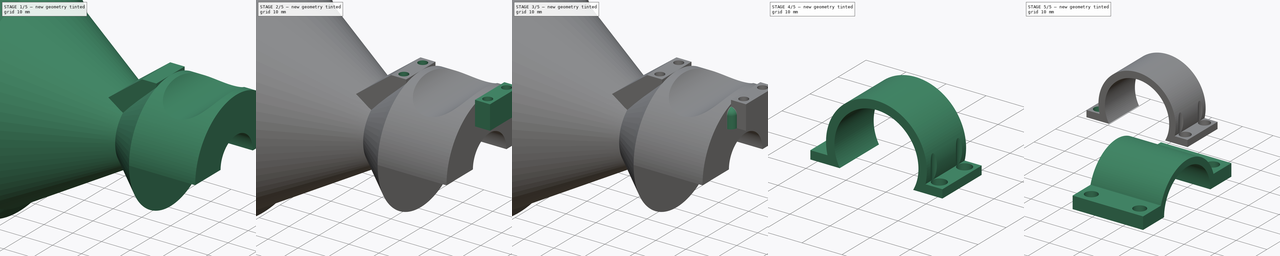
[diagram: build sequence overview — one tinted view per stage of 5, left to right]
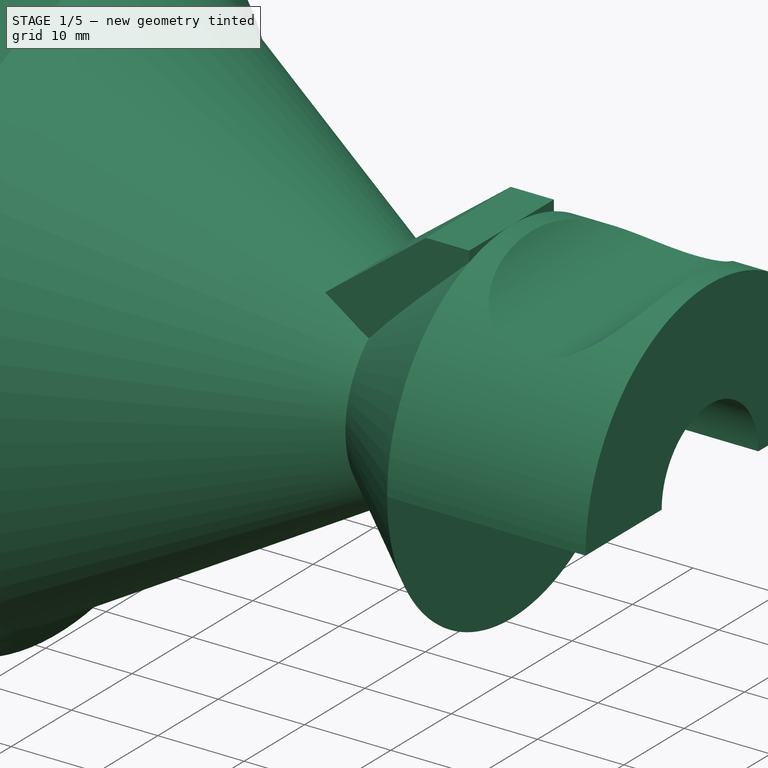
[diagram: stage 1 of 5 — iso view after this stage's code; geometry added in this stage tinted green]
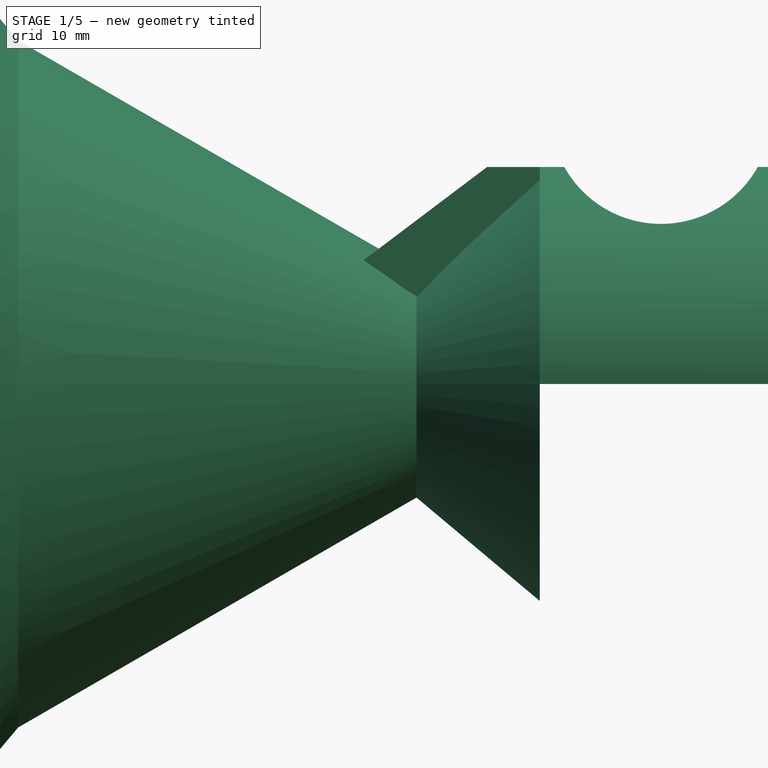
[diagram: stage 1 of 5 — front view after this stage's code; geometry added in this stage tinted green]
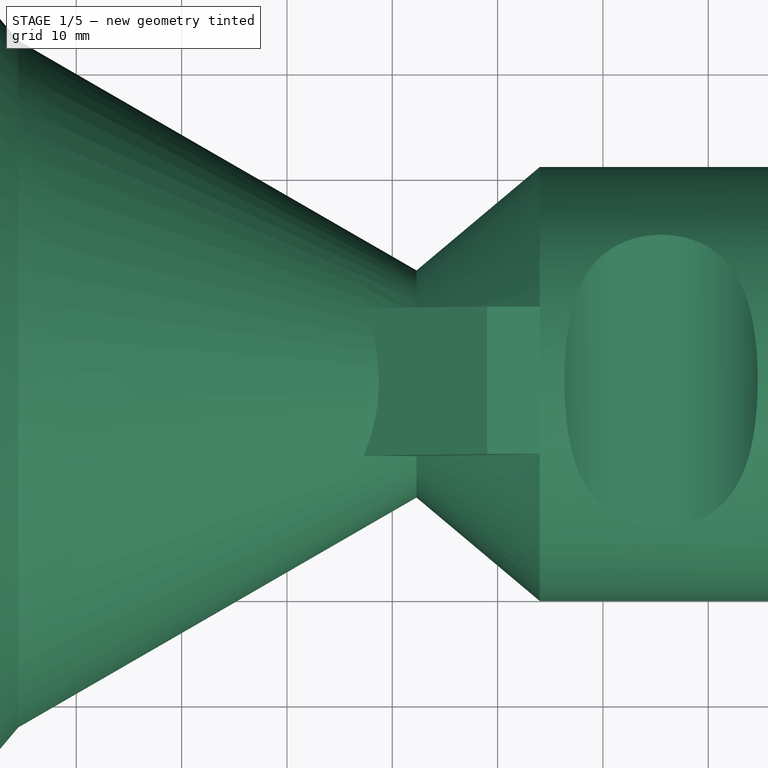
[diagram: stage 1 of 5 — top view after this stage's code; geometry added in this stage tinted green]
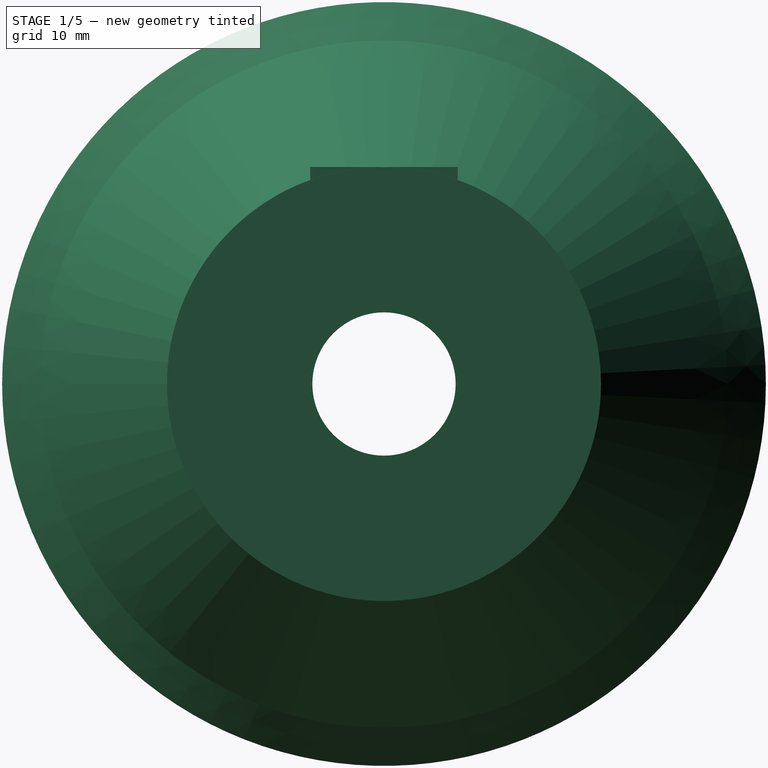
[diagram: stage 1 of 5 — right view after this stage's code; geometry added in this stage tinted green]
FCSTD DOCUMENT  (FreeCAD 1.0R39285 (Git))
Label: horn-for-kids-bike
License: All rights reserved
LicenseURL: https://en.wikipedia.org/wiki/All_rights_reserved
objects: Sketcher::SketchObject×15, PartDesign::Hole×6, PartDesign::Pad×4, PartDesign::AdditiveSphere×4, PartDesign::SubShapeBinder×4, PartDesign::Body×3, PartDesign::Revolution×2, PartDesign::Pocket×2, PartDesign::AdditiveCylinder×2
note: 97 computed .brp shape members not serialized (recipe doc carries the construction recipe); baked Part::Feature solids carry a one-line shape summary decoded from their .brp

FEATURE [Sketcher::SketchObject] Sketch
  ArcFitTolerance = 1e-06
  AttachmentSupport = -> [XY_Plane]
  FullyConstrained = false
  MakeInternals = false
  MapMode = 5
  sketch-geometry (17):
    g0: LineSegment StartX=0 StartY=-6.8 StartZ=0 EndX=-15 EndY=-6.8 EndZ=0
    g1: LineSegment StartX=-15 StartY=-6.8 StartZ=0 EndX=-56.5692 EndY=-30.8 EndZ=0
    g2: LineSegment StartX=0 StartY=-6.8 StartZ=0 EndX=0 EndY=-10.8 EndZ=0
    g3: LineSegment StartX=0 StartY=-10.8 StartZ=0 EndX=3 EndY=-10.8 EndZ=0
    g4: LineSegment StartX=6.58384 StartY=-8 StartZ=0 EndX=17 EndY=-8 EndZ=0
    g5: LineSegment StartX=3 StartY=-10.8 StartZ=0 EndX=6.58384 EndY=-8 EndZ=0
    g6: LineSegment [constr] StartX=6.58384 StartY=-8 StartZ=0 EndX=0.404554 EndY=-8 EndZ=0
    g7: LineSegment [constr] StartX=-15 StartY=-6.8 StartZ=0 EndX=-25 EndY=-6.8 EndZ=0
    g8: LineSegment [constr] StartX=-56.5692 StartY=-30.8 StartZ=0 EndX=-55.5192 EndY=-32.6187 EndZ=0
    g9: LineSegment StartX=-55.5192 StartY=-32.6187 StartZ=0 EndX=-17.6992 EndY=-10.7832 EndZ=0
    g10: LineSegment StartX=-6 StartY=-20.6 StartZ=0 EndX=17 EndY=-20.6 EndZ=0
    g11: LineSegment StartX=17 StartY=-8 StartZ=0 EndX=17 EndY=-20.6 EndZ=0
    g12: LineSegment [constr] StartX=3 StartY=-10.8 StartZ=0 EndX=3 EndY=-15.5881 EndZ=0
    g13: LineSegment StartX=-6 StartY=-20.6 StartZ=0 EndX=-17.6992 EndY=-10.7832 EndZ=0
    g14: LineSegment StartX=-56.5692 StartY=-30.8 StartZ=0 EndX=-58.5692 EndY=-30.8 EndZ=0
    g15: LineSegment StartX=-55.5192 StartY=-32.6187 StartZ=0 EndX=-58.5692 EndY=-36.2535 EndZ=0
    g16: LineSegment StartX=-58.5692 StartY=-30.8 StartZ=0 EndX=-58.5692 EndY=-36.2535 EndZ=0
  constraints (47):
    c: PointOnObject(g0,g-2)
    c: Horizontal(g0)
    c: DistanceY(g0,g-1) = 6.8
    c: DistanceX(g0,g0) = 15
    c: Distance(g1) = 48
    c: Coincident(g0,g1)
    c: Distance(g2) = 4
    c: Coincident(g2,g0)
    c: PointOnObject(g2,g-2)
    c: Distance(g3) = 3
    c: Coincident(g3,g2)
    c: Horizontal(g3)
    c: Horizontal(g4)
    c: Coincident(g5,g3)
    c: Coincident(g4,g5)
    c: Horizontal(g6)
    c: Coincident(g6,g4)
    c: Angle(g6,g5) = 0.663225
    c: Distance(g4,g-1) = 8
    c: Coincident(g7,g0)
    c: Horizontal(g7)
    c: Angle(g7,g1) = 0.523599
    c: Distance(g8) = 2.1
    c: Coincident(g8,g1)
    c: Perpendicular(g1,g8)
    c: Coincident(g9,g8)
    c: Parallel(g9,g1)
    c: Horizontal(g10)
    c: Distance(g4,g10) = 12.6
    c: Coincident(g11,g4)
    c: Coincident(g11,g10)
    c: Vertical(g11)
    c: Coincident(g12,g3)
    c: Vertical(g12)
    c: Distance(g11,g12) = 14
    c: DistanceX(g10,g10) = 23
    c: Coincident(g13,g10)
    c: Coincident(g13,g9)
    c: Angle(g10,g13) = 2.44346
    c: Distance(g14) = 2
    c: Coincident(g14,g1)
    c: Horizontal(g14)
    c: Coincident(g15,g8)
    c: Coincident(g16,g14)
    c: Vertical(g16)
    c: Coincident(g15,g16)
    c: Angle(g15,g9) = 2.79253
FEATURE [PartDesign::Revolution] Revolution
  Angle = 360
  Angle2 = 60
  Axis = (1,0,0)
  Base = (0,0,0)
  Profile = -> Sketch
  ReferenceAxis = -> X_Axis
  Refine = true
  Reversed = true
  Suppressed = false
  Type = 0
FEATURE [Sketcher::SketchObject] Sketch001
  ArcFitTolerance = 1e-06
  AttachmentSupport = -> [XY_Plane]
  ExternalGeometry = -> [Sketch]
  FullyConstrained = true
  MakeInternals = false
  MapMode = 5
  sketch-geometry (6):
    g0: LineSegment StartX=-6 StartY=-20.6 StartZ=0 EndX=-6 EndY=0 EndZ=0
    g1: LineSegment StartX=-6 StartY=-20.6 StartZ=0 EndX=17 EndY=-20.6 EndZ=0
    g2: LineSegment StartX=17 StartY=-20.6 StartZ=0 EndX=17 EndY=0 EndZ=0
    g3: LineSegment StartX=17 StartY=0 StartZ=0 EndX=17 EndY=20.6 EndZ=0
    g4: LineSegment StartX=-6 StartY=0 StartZ=0 EndX=-6 EndY=20.6 EndZ=0
    g5: LineSegment StartX=-6 StartY=20.6 StartZ=0 EndX=17 EndY=20.6 EndZ=0
  constraints (16):
    c: Coincident(g-3,g0)
    c: PointOnObject(g0,g-1)
    c: Vertical(g0)
    c: Coincident(g0,g1)
    c: Coincident(g1,g-3)
    c: Coincident(g1,g2)
    c: PointOnObject(g2,g-1)
    c: Vertical(g2)
    c: Coincident(g2,g3)
    c: Vertical(g3)
    c: Equal(g3,g2)
    c: Coincident(g4,g0)
    c: Vertical(g4)
    c: Coincident(g5,g4)
    c: Coincident(g5,g3)
    c: Horizontal(g5)
FEATURE [PartDesign::Pocket] Pocket
  BaseFeature = -> Revolution
  Direction = (0,0,-1)
  Length = 40
  Length2 = 5
  Profile = -> Sketch001
  ReferenceAxis = -> Sketch001 [N_Axis]
  Refine = true
  Suppressed = false
  Type = 0
FEATURE [Sketcher::SketchObject] Sketch002
  ArcFitTolerance = 1e-06
  AttachmentSupport = -> [XZ_Plane]
  ExternalGeometry = -> [Pocket]
  FullyConstrained = false
  MakeInternals = false
  MapMode = 5
  Placement = pos=(0,0,0) rot=(1,0,0;1.5708rad)
  sketch-geometry (2):
    g0: LineSegment [constr] StartX=17 StartY=20.6 StartZ=0 EndX=-2.45943 EndY=20.6 EndZ=0
    g1: Circle CenterX=5.51527 CenterY=25.7009 CenterZ=0 NormalX=0 NormalY=0 NormalZ=1 AngleXU=0 Radius=10.5
  constraints (3):
    c: Coincident(g0,g-4)
    c: Horizontal(g0)
    c: Diameter(g1) = 21
FEATURE [PartDesign::Pocket] Pocket001  label="Steering Groove"
  BaseFeature = -> Pocket
  Direction = (0,1,-2e-16)
  Length = 40
  Length2 = 5
  Midplane = true
  Profile = -> Sketch002
  ReferenceAxis = -> Sketch002 [N_Axis]
  Refine = true
  Suppressed = false
  Type = 0
FEATURE [Sketcher::SketchObject] Sketch005
  ArcFitTolerance = 1e-06
  AttachmentSupport = -> [XZ_Plane]
  ExternalGeometry = -> [Pocket001,Revolution]
  FullyConstrained = false
  MakeInternals = false
  MapMode = 5
  Placement = pos=(0,0,0) rot=(1,0,0;1.5708rad)
  sketch-geometry (7):
    g0: LineSegment StartX=-6 StartY=20.6 StartZ=0 EndX=-11 EndY=20.6 EndZ=0
    g1: LineSegment StartX=-11 StartY=20.6 StartZ=0 EndX=-23.1021 EndY=11.465 EndZ=0
    g2: LineSegment StartX=-6 StartY=16.3822 StartZ=0 EndX=-6 EndY=20.6 EndZ=0
    g3: LineSegment [constr] StartX=-6 StartY=20.6 StartZ=0 EndX=-58.5692 EndY=36.2535 EndZ=0
    g4: LineSegment [constr] StartX=-15 StartY=6.8 StartZ=0 EndX=-56.5692 EndY=30.8 EndZ=0
    g5: LineSegment StartX=-23.1021 StartY=11.465 StartZ=0 EndX=-15 EndY=6.8 EndZ=0
    g6: LineSegment StartX=-15 StartY=6.8 StartZ=0 EndX=-6 EndY=16.3822 EndZ=0
  constraints (14):
    c: Coincident(g0,g1)
    c: Coincident(g2,g0)
    c: Horizontal(g0)
    c: Vertical(g2)
    c: Distance(g1,g2) = 5
    c: Coincident(g0,g-3)
    c: Coincident(g3,g0)
    c: Coincident(g3,g-4)
    c: Coincident(g4,g-6)
    c: Coincident(g4,g-5)
    c: Coincident(g5,g1)
    c: Coincident(g5,g4)
    c: Coincident(g6,g4)
    c: Coincident(g6,g2)
FEATURE [PartDesign::Pad] Pad001
  BaseFeature = -> Pocket001
  Direction = (0,-1,2e-16)
  Length = 14
  Length2 = 10
  Midplane = true
  Profile = -> Sketch005
  ReferenceAxis = -> Sketch005 [N_Axis]
  Refine = true
  Suppressed = false
  Type = 0
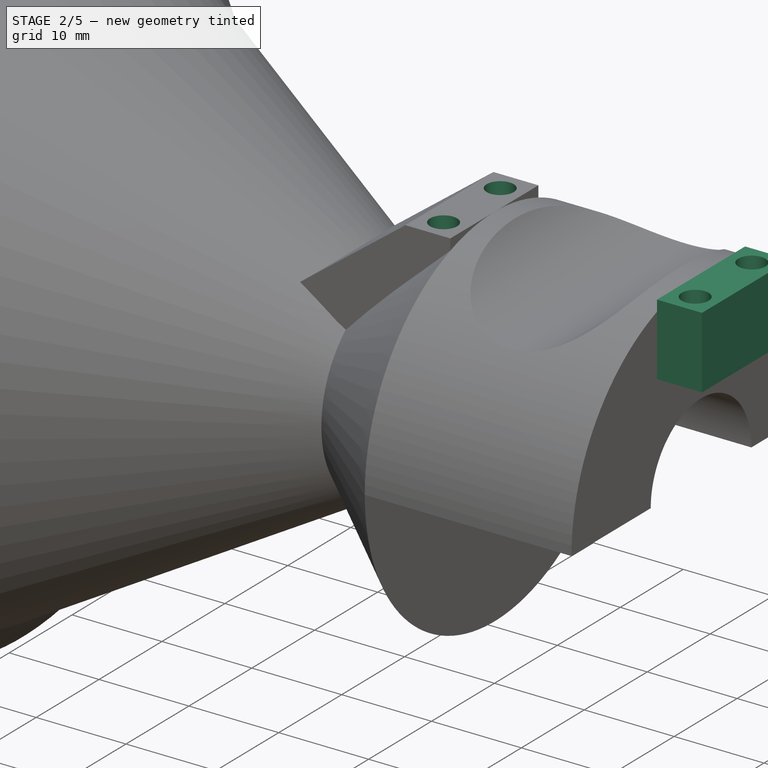
[diagram: stage 2 of 5 — iso view after this stage's code; geometry added in this stage tinted green]
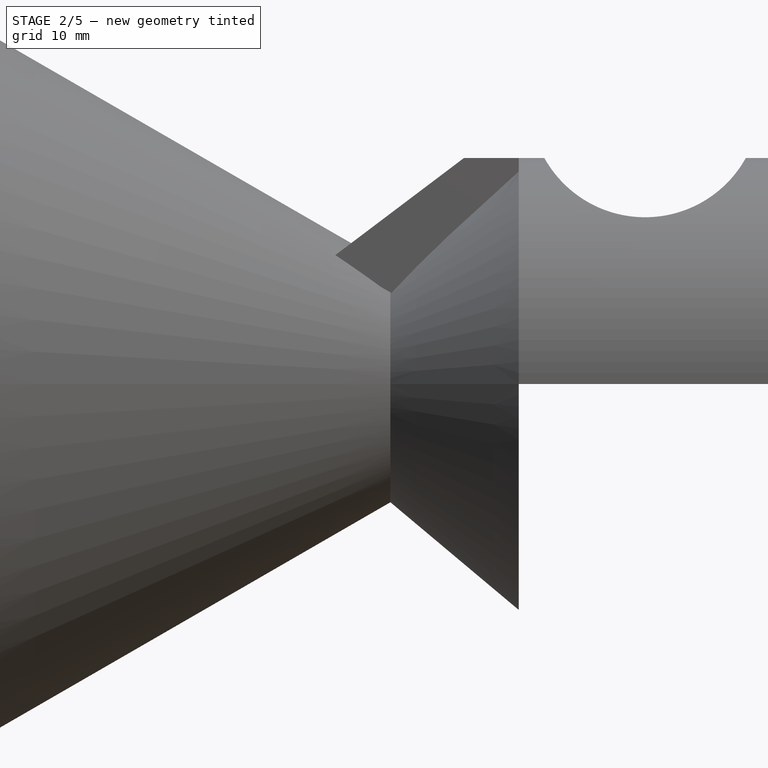
[diagram: stage 2 of 5 — front view after this stage's code; geometry added in this stage tinted green]
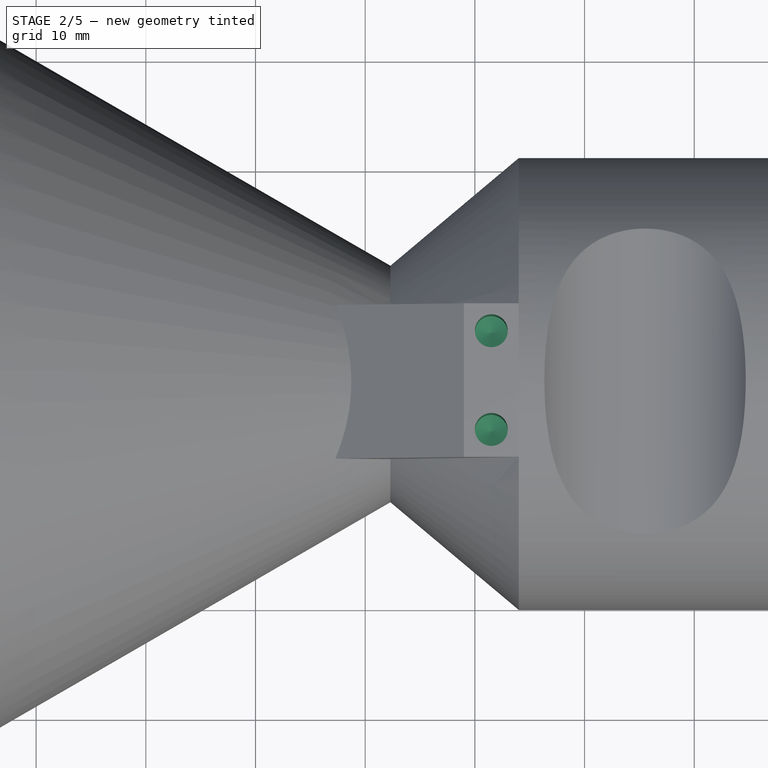
[diagram: stage 2 of 5 — top view after this stage's code; geometry added in this stage tinted green]
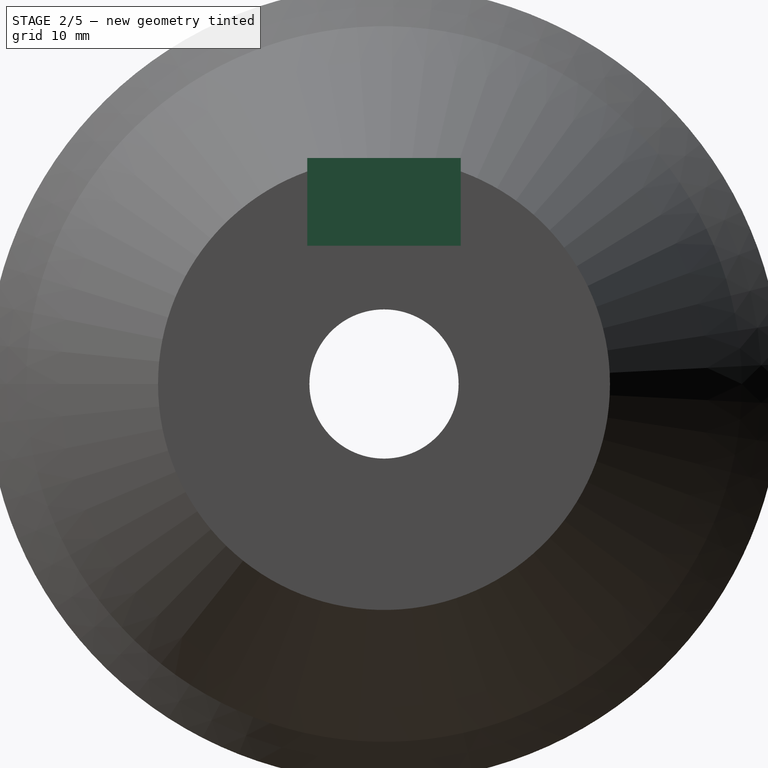
[diagram: stage 2 of 5 — right view after this stage's code; geometry added in this stage tinted green]
FEATURE [Sketcher::SketchObject] Sketch006
  ArcFitTolerance = 1e-06
  AttachmentSupport = -> [Pad001]
  ExternalGeometry = -> [Pad001]
  FullyConstrained = true
  MakeInternals = false
  MapMode = 5
  Placement = pos=(0,4.5e-15,20.6) rot=(0,0,1;0rad)
  sketch-geometry (2):
    g0: Circle CenterX=-8.5 CenterY=4.5 CenterZ=0 NormalX=0 NormalY=0 NormalZ=1 AngleXU=0 Radius=1.5
    g1: Circle CenterX=-8.5 CenterY=-4.5 CenterZ=0 NormalX=0 NormalY=0 NormalZ=1 AngleXU=0 Radius=1.5
  constraints (5):
    c: Diameter(g0) = 3
    c: Distance(g0,g-3) = 1
    c: Distance(g0,g-4) = 1
    c: Equal(g1,g0)
    c: Symmetric(g0,g1,g-1)
FEATURE [PartDesign::Hole] Hole001
  BaseFeature = -> Pad001
  CustomThreadClearance = 0
  Depth = 10
  DepthType = 0
  Diameter = 3
  DrillForDepth = false
  DrillPoint = 1
  DrillPointAngle = 118
  HoleCutCountersinkAngle = 90
  HoleCutCustomValues = false
  HoleCutDepth = 0
  HoleCutDiameter = 6.1
  HoleCutType = 0
  ModelThread = false
  Profile = -> Sketch006
  Refine = true
  Suppressed = false
  Tapered = false
  TaperedAngle = 90
  ThreadClass = 0
  ThreadDepth = 10
  ThreadDepthType = 0
  ThreadDirection = 0
  ThreadFit = 0
  ThreadSize = 0
  ThreadType = 0
  Threaded = false
  UseCustomThreadClearance = false
FEATURE [Sketcher::SketchObject] Sketch007
  ArcFitTolerance = 1e-06
  AttachmentSupport = -> [XZ_Plane]
  ExternalGeometry = -> [Hole001]
  FullyConstrained = true
  MakeInternals = false
  MapMode = 5
  Placement = pos=(0,0,0) rot=(1,0,0;1.5708rad)
  sketch-geometry (4):
    g0: LineSegment StartX=17 StartY=20.6 StartZ=0 EndX=17 EndY=12.6 EndZ=0
    g1: LineSegment StartX=17 StartY=12.6 StartZ=0 EndX=22 EndY=12.6 EndZ=0
    g2: LineSegment StartX=22 StartY=12.6 StartZ=0 EndX=22 EndY=20.6 EndZ=0
    g3: LineSegment StartX=22 StartY=20.6 StartZ=0 EndX=17 EndY=20.6 EndZ=0
  constraints (11):
    c: Coincident(g0,g1)
    c: Coincident(g1,g2)
    c: Coincident(g2,g3)
    c: Coincident(g3,g0)
    c: Vertical(g0)
    c: Vertical(g2)
    c: Horizontal(g1)
    c: Horizontal(g3)
    c: Distance(g0,g2) = 5
    c: Distance(g1,g3) = 8
    c: Coincident(g0,g-3)
FEATURE [PartDesign::Pad] Pad
  BaseFeature = -> Hole001
  Direction = (0,-1,2e-16)
  Length = 14
  Length2 = 10
  Midplane = true
  Profile = -> Sketch007
  ReferenceAxis = -> Sketch007 [N_Axis]
  Refine = true
  Suppressed = false
  Type = 0
FEATURE [Sketcher::SketchObject] Sketch008
  ArcFitTolerance = 1e-06
  AttachmentSupport = -> [Pad]
  ExternalGeometry = -> [Pad]
  FullyConstrained = true
  MakeInternals = false
  MapMode = 5
  Placement = pos=(0,4.5e-15,20.6) rot=(0,0,1;0rad)
  sketch-geometry (2):
    g0: Circle CenterX=19.5 CenterY=4.5 CenterZ=0 NormalX=0 NormalY=0 NormalZ=1 AngleXU=0 Radius=1.5
    g1: Circle CenterX=19.5 CenterY=-4.5 CenterZ=0 NormalX=0 NormalY=0 NormalZ=1 AngleXU=0 Radius=1.5
  constraints (5):
    c: Diameter(g0) = 3
    c: Equal(g1,g0)
    c: Distance(g0,g-4) = 1
    c: Distance(g0,g-3) = 1
    c: Symmetric(g1,g0,g-1)
FEATURE [PartDesign::Hole] Hole
  BaseFeature = -> Pad
  CustomThreadClearance = 0
  Depth = 10
  DepthType = 0
  Diameter = 3
  DrillForDepth = false
  DrillPoint = 1
  DrillPointAngle = 118
  HoleCutCountersinkAngle = 90
  HoleCutCustomValues = false
  HoleCutDepth = 0
  HoleCutDiameter = 6.1
  HoleCutType = 0
  ModelThread = false
  Profile = -> Sketch008
  Refine = true
  Suppressed = false
  Tapered = false
  TaperedAngle = 90
  ThreadClass = 0
  ThreadDepth = 10
  ThreadDepthType = 0
  ThreadDirection = 0
  ThreadFit = 0
  ThreadSize = 0
  ThreadType = 0
  Threaded = false
  UseCustomThreadClearance = false
FEATURE [Sketcher::SketchObject] Sketch009
  ArcFitTolerance = 1e-06
  AttachmentSupport = -> [Hole]
  ExternalGeometry = -> [Hole]
  FullyConstrained = true
  MakeInternals = false
  MapMode = 5
  Placement = pos=(0,0,0) rot=(1,0,0;3.14159rad)
  sketch-geometry (4):
    g0: Circle CenterX=13.4 CenterY=17 CenterZ=0 NormalX=0 NormalY=0 NormalZ=1 AngleXU=0 Radius=1.5
    g1: Circle CenterX=-2.4 CenterY=17 CenterZ=0 NormalX=0 NormalY=0 NormalZ=1 AngleXU=0 Radius=1.5
    g2: Circle CenterX=13.4 CenterY=-17 CenterZ=0 NormalX=0 NormalY=0 NormalZ=1 AngleXU=0 Radius=1.5
    g3: Circle CenterX=-2.4 CenterY=-17 CenterZ=0 NormalX=0 NormalY=0 NormalZ=1 AngleXU=0 Radius=1.5
  constraints (10):
    c: Diameter(g0) = 3
    c: Distance(g0,g-3) = 2.1
    c: Distance(g0,g-4) = 2.1
    c: Equal(g1,g0)
    c: Distance(g1,g-4) = 2.1
    c: Distance(g1,g-5) = 2.1
    c: Equal(g2,g0)
    c: Equal(g3,g0)
    c: Symmetric(g2,g0,g-1)
    c: Symmetric(g3,g1,g-1)
FEATURE [PartDesign::Hole] Hole002
  BaseFeature = -> Hole
  CustomThreadClearance = 0
  Depth = 8
  DepthType = 0
  Diameter = 3
  DrillForDepth = false
  DrillPoint = 1
  DrillPointAngle = 118
  HoleCutCountersinkAngle = 90
  HoleCutCustomValues = false
  HoleCutDepth = 0
  HoleCutDiameter = 6.1
  HoleCutType = 0
  ModelThread = false
  Profile = -> Sketch009
  Refine = true
  Suppressed = false
  Tapered = false
  TaperedAngle = 90
  ThreadClass = 0
  ThreadDepth = 8
  ThreadDepthType = 0
  ThreadDirection = 0
  ThreadFit = 0
  ThreadSize = 0
  ThreadType = 0
  Threaded = false
  UseCustomThreadClearance = false
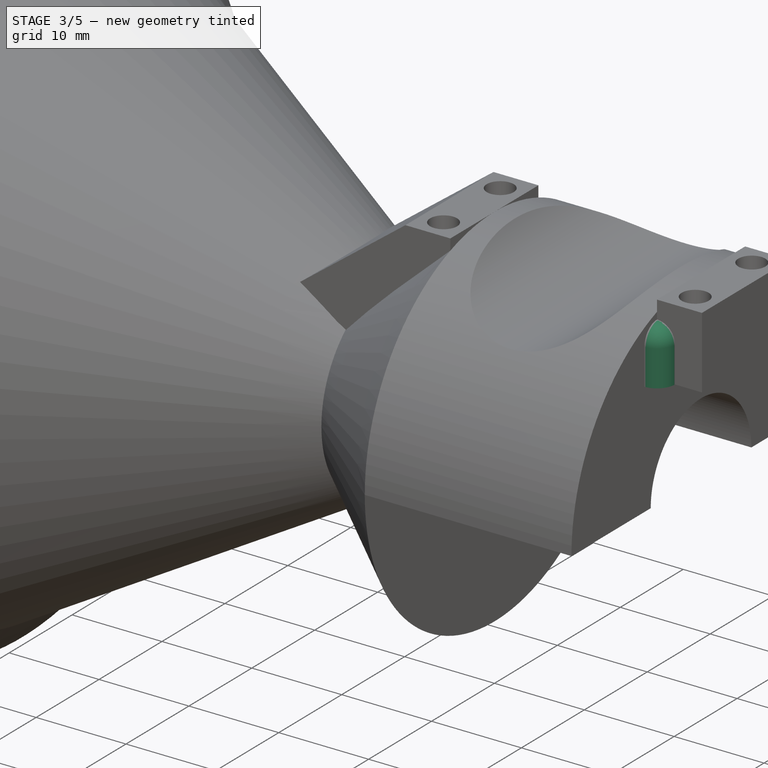
[diagram: stage 3 of 5 — iso view after this stage's code; geometry added in this stage tinted green]
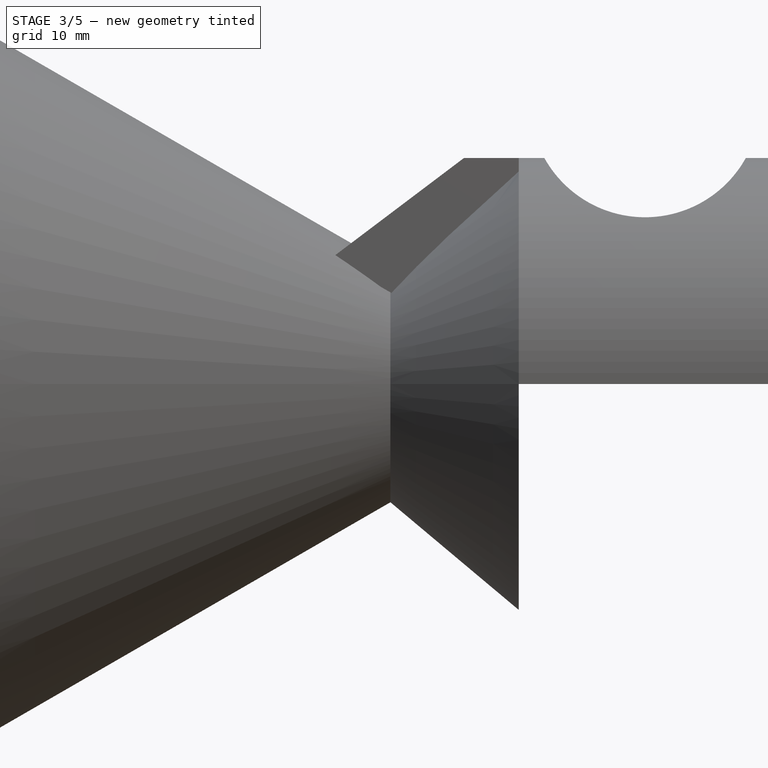
[diagram: stage 3 of 5 — front view after this stage's code; geometry added in this stage tinted green]
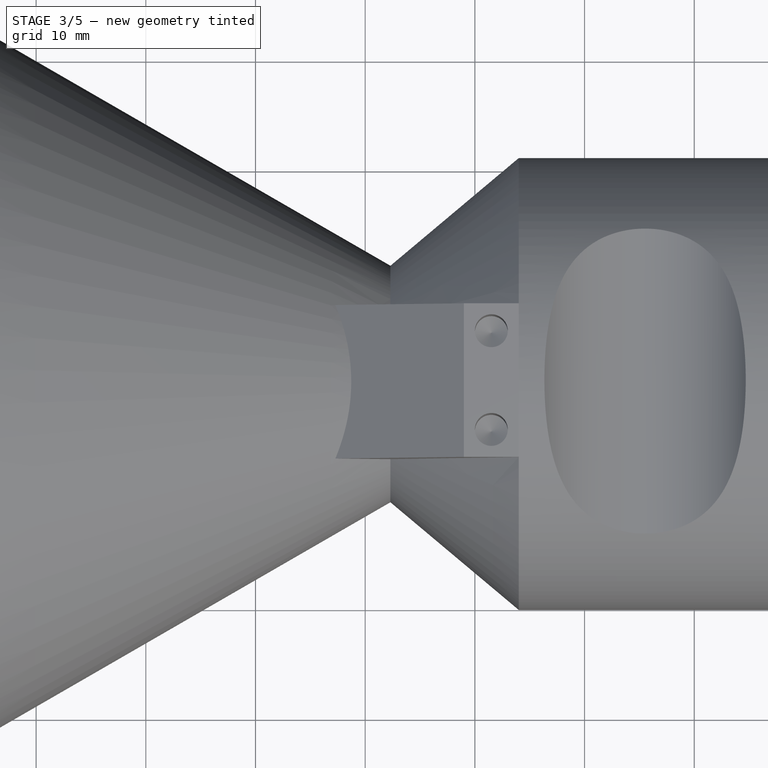
[diagram: stage 3 of 5 — top view after this stage's code; geometry added in this stage tinted green]
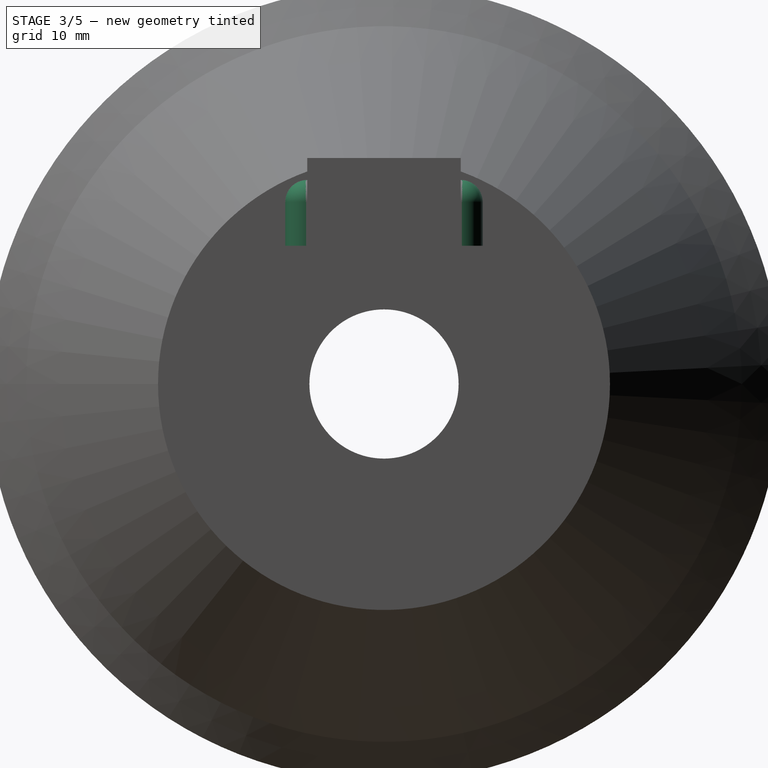
[diagram: stage 3 of 5 — right view after this stage's code; geometry added in this stage tinted green]
FEATURE [PartDesign::AdditiveCylinder] Cylinder
  Angle = 360
  AttacherType = Attacher::AttachEngine3D
  AttachmentSupport = -> [Hole002]
  BaseFeature = -> Hole002
  FirstAngle = 0
  Height = 4
  MapMode = 1
  Placement = pos=(17,-7,12.6) rot=(0,0,1;0rad)
  Radius = 2
  Refine = true
  SecondAngle = 0
  Suppressed = false
FEATURE [PartDesign::AdditiveCylinder] Cylinder001
  Angle = 360
  AttacherType = Attacher::AttachEngine3D
  AttachmentSupport = -> [Cylinder]
  BaseFeature = -> Cylinder
  FirstAngle = 0
  Height = 4
  MapMode = 1
  Placement = pos=(17,7,12.6) rot=(0,0,1;0rad)
  Radius = 2
  Refine = true
  SecondAngle = 0
  Suppressed = false
FEATURE [PartDesign::AdditiveSphere] Sphere
  Angle1 = -90
  Angle2 = 90
  Angle3 = 360
  AttacherType = Attacher::AttachEngine3D
  AttachmentSupport = -> [Cylinder001]
  BaseFeature = -> Cylinder001
  MapMode = 7
  Placement = pos=(17,7,16.6) rot=(0.57735,-0.57735,-0.57735;2.0944rad)
  Radius = 2
  Refine = true
  Suppressed = false
FEATURE [PartDesign::AdditiveSphere] Sphere001
  Angle1 = -90
  Angle2 = 90
  Angle3 = 360
  AttacherType = Attacher::AttachEngine3D
  AttachmentSupport = -> [Sphere]
  BaseFeature = -> Sphere
  MapMode = 7
  Placement = pos=(17,-7,16.6) rot=(0.57735,-0.57735,-0.57735;2.0944rad)
  Radius = 2
  Refine = true
  Suppressed = false
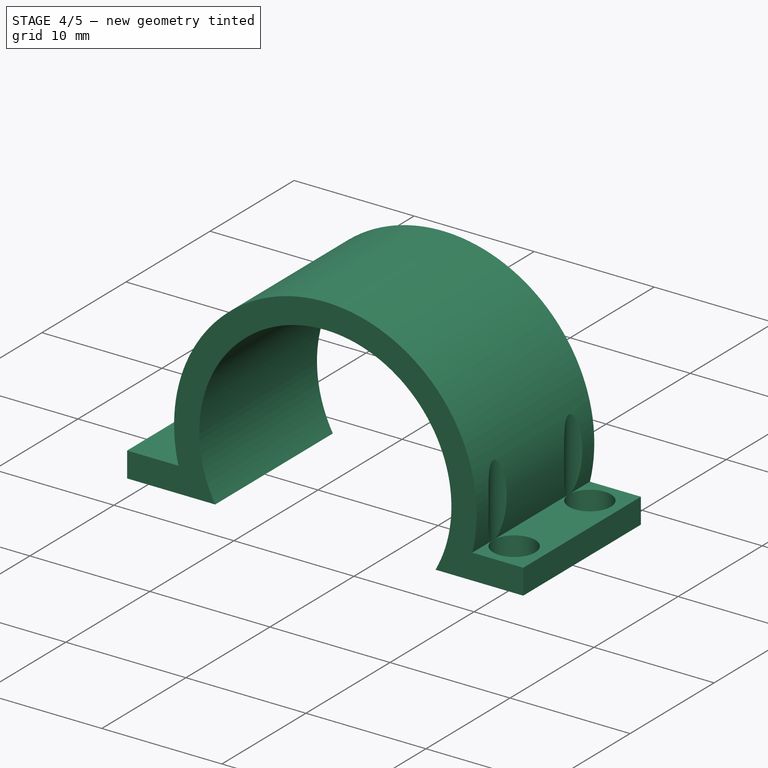
[diagram: stage 4 of 5 — iso view after this stage's code; geometry added in this stage tinted green]
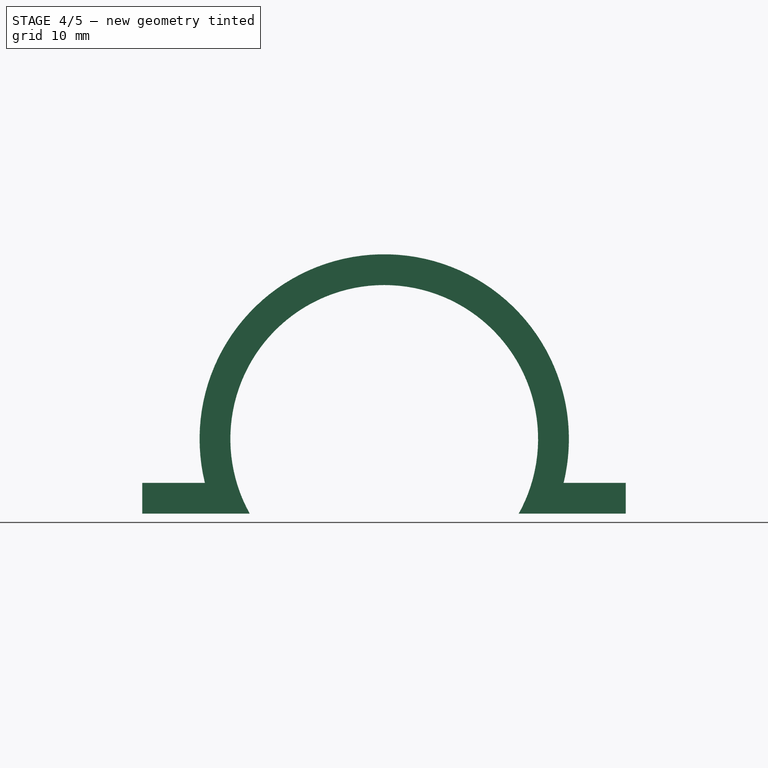
[diagram: stage 4 of 5 — front view after this stage's code; geometry added in this stage tinted green]
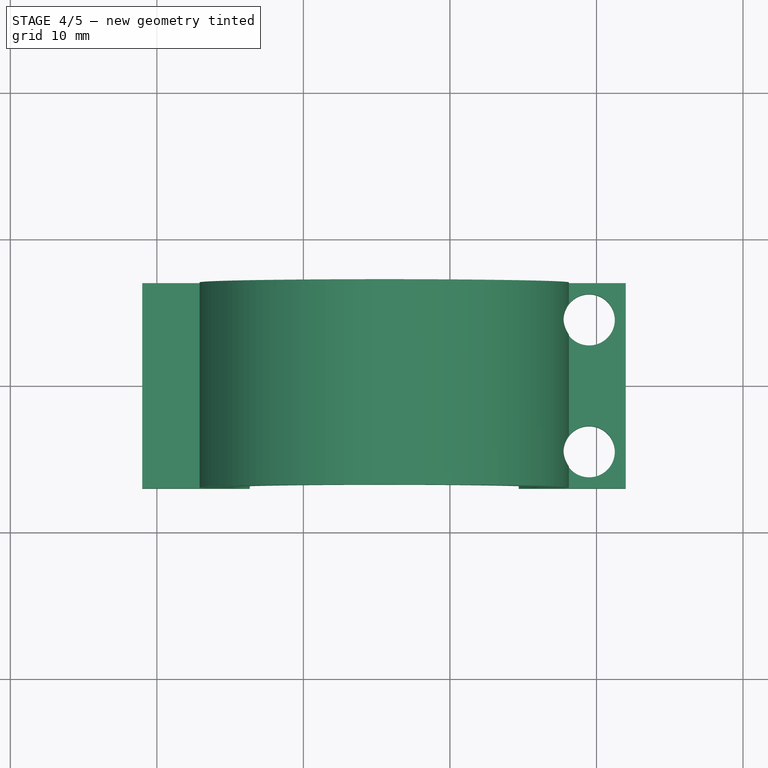
[diagram: stage 4 of 5 — top view after this stage's code; geometry added in this stage tinted green]
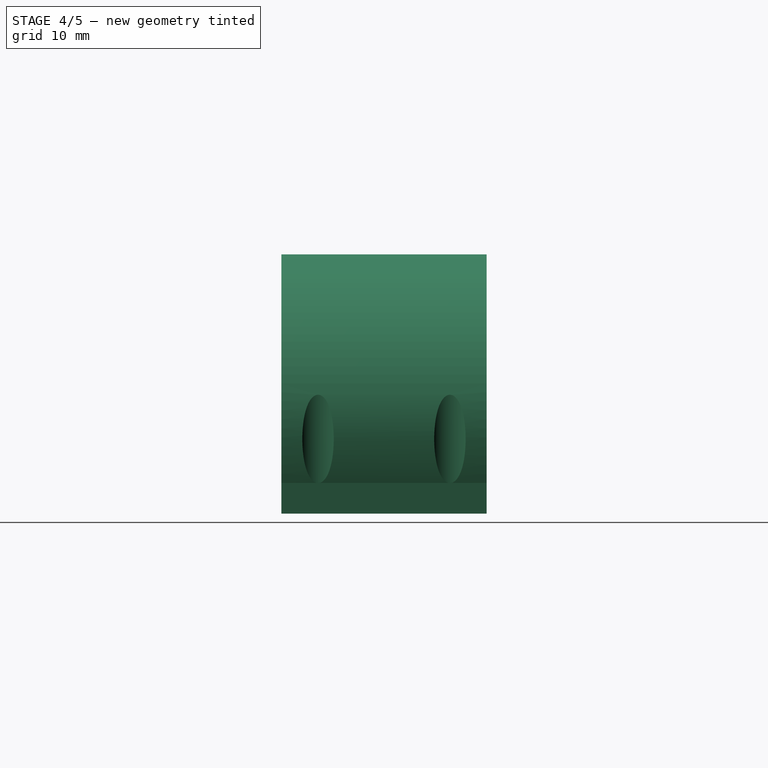
[diagram: stage 4 of 5 — right view after this stage's code; geometry added in this stage tinted green]
FEATURE [PartDesign::AdditiveSphere] Sphere002
  Angle1 = -90
  Angle2 = 90
  Angle3 = 360
  AttacherType = Attacher::AttachEngine3D
  AttachmentSupport = -> [Sphere001]
  BaseFeature = -> Sphere001
  MapMode = 11
  Placement = pos=(17,-7,12.6) rot=(0,0,1;0rad)
  Radius = 2
  Refine = true
  Suppressed = false
FEATURE [PartDesign::AdditiveSphere] Sphere003
  Angle1 = -90
  Angle2 = 90
  Angle3 = 360
  AttacherType = Attacher::AttachEngine3D
  AttachmentSupport = -> [Sphere002]
  BaseFeature = -> Sphere002
  MapMode = 11
  Placement = pos=(17,7,12.6) rot=(0,0,1;1.5708rad)
  Radius = 2
  Refine = true
  Suppressed = false
FEATURE [PartDesign::Body] Body001  label="Top Clamp"
  AllowCompound = false
  Group = -> [Binder,Sketch010,Revolution001,Binder001,Sketch011,Pad002,Sketch012,Hole003]
  Origin = -> Origin001
  Tip = -> Hole003
FEATURE [PartDesign::SubShapeBinder] Binder002
  BindCopyOnChange = 0
  BindMode = 0
  ClaimChildren = false
  Context = -> Body002 [Binder002.]
  Fuse = false
  MakeFace = true
  OffsetFill = false
  OffsetIntersection = false
  OffsetJoinType = 0
  OffsetOpenResult = false
  PartialLoad = false
  Refine = true
  Relative = true
  Support = -> [Body[Sketch002.]]
  _Version = 2
FEATURE [Sketcher::SketchObject] Sketch013
  ArcFitTolerance = 1e-06
  AttachmentSupport = -> [XZ_Plane002]
  ExternalGeometry = -> [Binder002]
  FullyConstrained = true
  MakeInternals = false
  MapMode = 5
  Placement = pos=(0,0,0) rot=(1,0,0;1.5708rad)
FEATURE [PartDesign::SubShapeBinder] Binder003
  BindCopyOnChange = 0
  BindMode = 0
  ClaimChildren = false
  Context = -> Body002 [Binder003.]
  Fuse = false
  MakeFace = true
  OffsetFill = false
  OffsetIntersection = false
  OffsetJoinType = 0
  OffsetOpenResult = false
  PartialLoad = false
  Refine = true
  Relative = true
  Support = -> [Body[Hole002.]]
  _Version = 2
FEATURE [Sketcher::SketchObject] Sketch014
  ArcFitTolerance = 1e-06
  AttachmentSupport = -> [Binder002]
  ExternalGeometry = -> [Binder003,Binder002]
  FullyConstrained = true
  MakeInternals = false
  MapMode = 5
  Placement = pos=(0,5.7e-15,0) rot=(0,0.707107,0.707107;3.14159rad)
  sketch-geometry (10):
    g0: LineSegment StartX=-22 StartY=20.6 StartZ=0 EndX=-17 EndY=20.6 EndZ=0
    g1: LineSegment StartX=-17.7527 StartY=22.7 StartZ=0 EndX=-22 EndY=22.7 EndZ=0
    g2: LineSegment StartX=-22 StartY=22.7 StartZ=0 EndX=-22 EndY=20.6 EndZ=0
    g3: LineSegment StartX=6 StartY=20.6 StartZ=0 EndX=11 EndY=20.6 EndZ=0
    g4: LineSegment StartX=11 StartY=20.6 StartZ=0 EndX=11 EndY=22.7 EndZ=0
    g5: LineSegment StartX=11 StartY=22.7 StartZ=0 EndX=6.72217 EndY=22.7 EndZ=0
    g6: ArcOfCircle CenterX=-5.51527 CenterY=25.7009 CenterZ=0 NormalX=0 NormalY=0 NormalZ=1 AngleXU=0 Radius=10.5 StartAngle=5.77591 EndAngle=9.93205
    g7: LineSegment StartX=-17 StartY=20.6 StartZ=0 EndX=-14.693 EndY=20.6 EndZ=0
    g8: LineSegment StartX=6 StartY=20.6 StartZ=0 EndX=3.66249 EndY=20.6 EndZ=0
    g9: ArcOfCircle CenterX=-5.51527 CenterY=25.7009 CenterZ=0 NormalX=0 NormalY=0 NormalZ=1 AngleXU=0 Radius=12.6 StartAngle=6.04271 EndAngle=9.66525
  constraints (26):
    c: Coincident(g1,g2)
    c: Coincident(g2,g0)
    c: Horizontal(g1)
    c: Vertical(g2)
    c: Coincident(g0,g-5)
    c: Coincident(g0,g-3)
    c: Coincident(g3,g4)
    c: Coincident(g4,g5)
    c: Horizontal(g5)
    c: Vertical(g4)
    c: Coincident(g3,g-4)
    c: Coincident(g3,g-4)
    c: DistanceY(g2,g2) = 2.1
    c: Coincident(g6,g-6)
    c: Equal(g6,g-6)
    c: Equal(g2,g4)
    c: Coincident(g7,g0)
    c: Horizontal(g7)
    c: Coincident(g8,g3)
    c: Horizontal(g8)
    c: Coincident(g9,g6)
    c: Distance(g6,g9) = 2.1
    c: Coincident(g9,g5)
    c: Coincident(g9,g1)
    c: Coincident(g6,g7)
    c: Coincident(g6,g8)
FEATURE [PartDesign::Pad] Pad003
  Direction = (0,1,-2e-16)
  Length = 14
  Length2 = 10
  Midplane = true
  Profile = -> Sketch014
  ReferenceAxis = -> Sketch014 [N_Axis]
  Refine = true
  Suppressed = false
  Type = 0
FEATURE [Sketcher::SketchObject] Sketch015
  ArcFitTolerance = 1e-06
  AttachmentSupport = -> [Pad003]
  ExternalGeometry = -> [Binder003]
  FullyConstrained = true
  MakeInternals = false
  MapMode = 5
  Placement = pos=(-7.8e-15,0,20.6) rot=(1,0,0;3.14159rad)
  sketch-geometry (2):
    g0: Circle CenterX=19.5 CenterY=4.5 CenterZ=0 NormalX=0 NormalY=0 NormalZ=1 AngleXU=0 Radius=1.75
    g1: Circle CenterX=19.5 CenterY=-4.5 CenterZ=0 NormalX=0 NormalY=0 NormalZ=1 AngleXU=0 Radius=1.75
  constraints (4):
    c: Coincident(g0,g-3)
    c: Diameter(g0) = 3.5
    c: Coincident(g1,g-4)
    c: Equal(g0,g1)
FEATURE [PartDesign::Hole] Hole004
  BaseFeature = -> Pad003
  CustomThreadClearance = 0
  Depth = 80.7532
  DepthType = 1
  Diameter = 3.5
  DrillForDepth = false
  DrillPoint = 1
  DrillPointAngle = 118
  HoleCutCountersinkAngle = 90
  HoleCutCustomValues = false
  HoleCutDepth = 0
  HoleCutDiameter = 6.1
  HoleCutType = 0
  ModelThread = false
  Profile = -> Sketch015
  Refine = true
  Suppressed = false
  Tapered = false
  TaperedAngle = 94
  ThreadClass = 0
  ThreadDepth = 80.7532
  ThreadDepthType = 0
  ThreadDirection = 0
  ThreadFit = 0
  ThreadSize = 0
  ThreadType = 0
  Threaded = false
  UseCustomThreadClearance = false
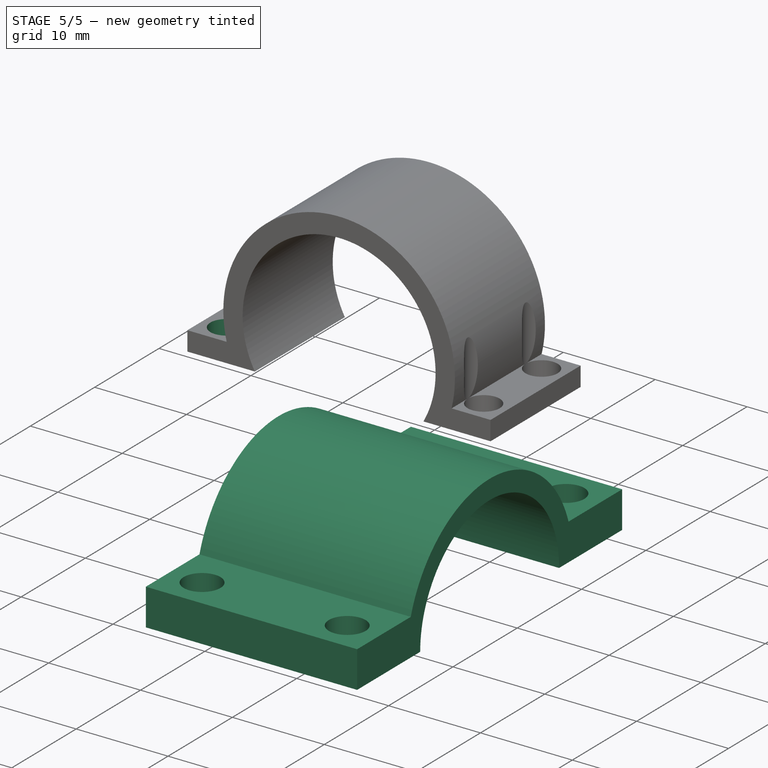
[diagram: stage 5 of 5 — iso view after this stage's code; geometry added in this stage tinted green]
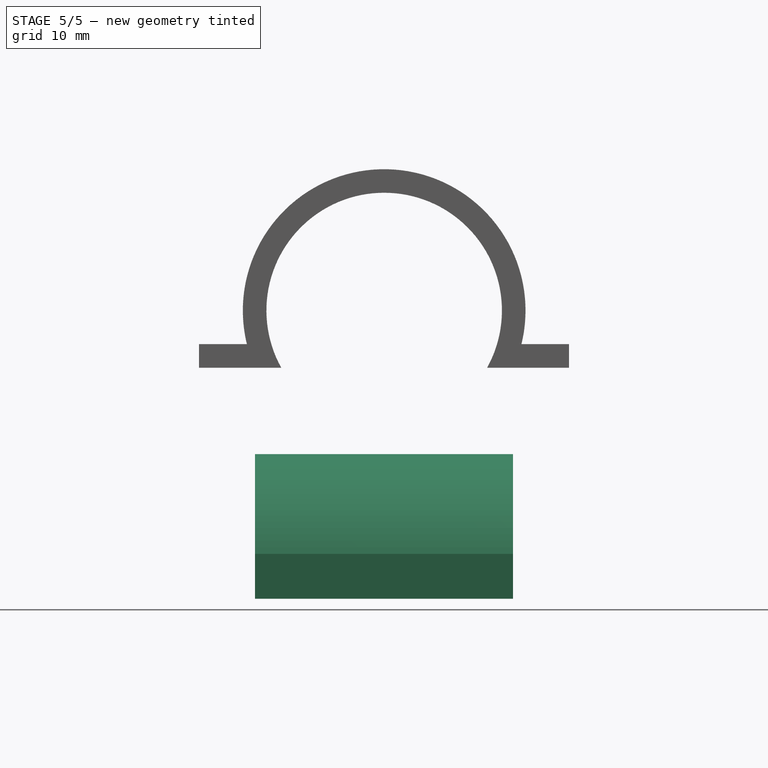
[diagram: stage 5 of 5 — front view after this stage's code; geometry added in this stage tinted green]
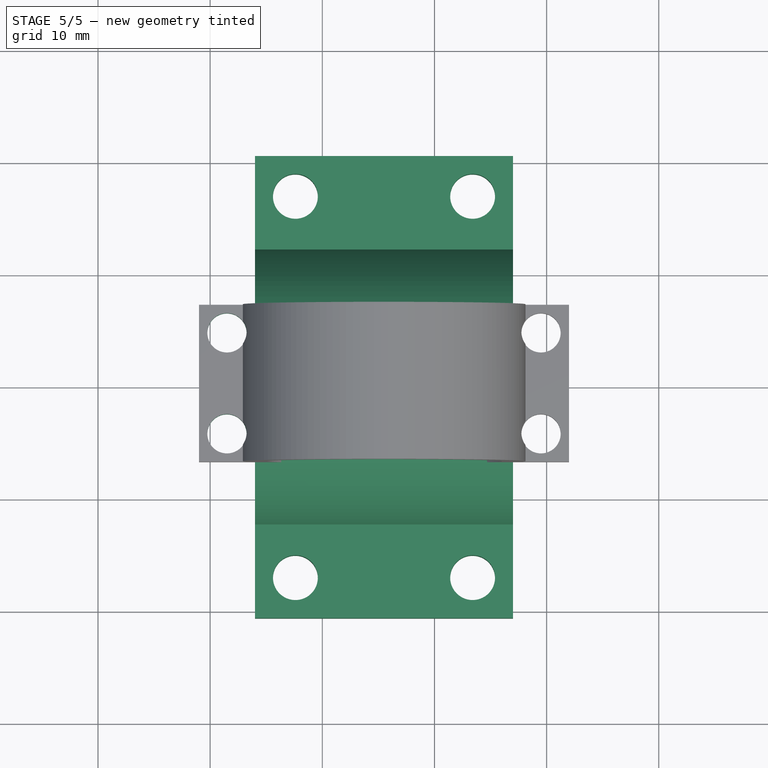
[diagram: stage 5 of 5 — top view after this stage's code; geometry added in this stage tinted green]
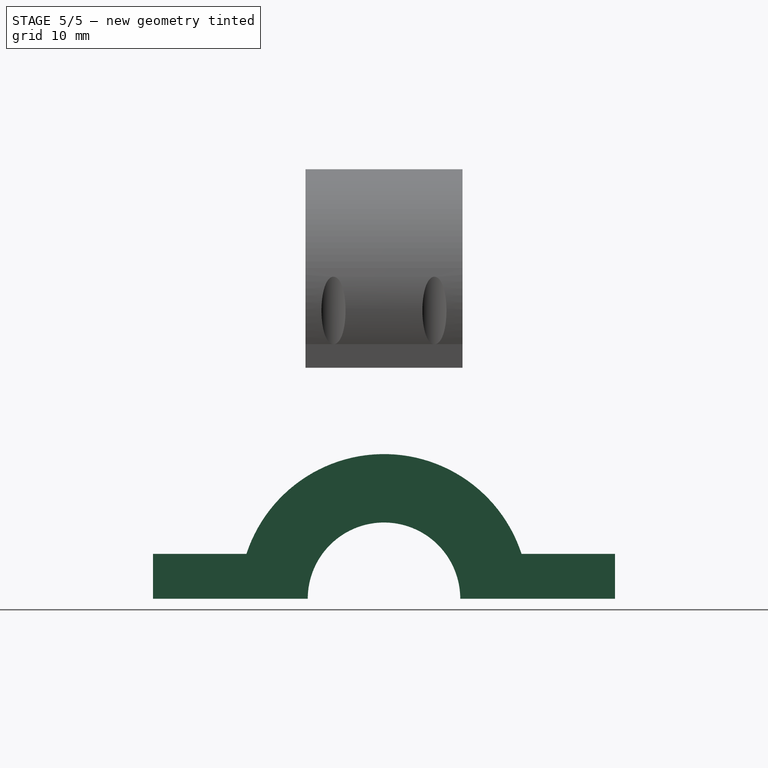
[diagram: stage 5 of 5 — right view after this stage's code; geometry added in this stage tinted green]
FEATURE [PartDesign::Body] Body
  AllowCompound = false
  Group = -> [Sketch,Revolution,Sketch001,Pocket,Sketch002,Pocket001,Sketch005,Pad001,Sketch006,Hole001,Sketch007,Pad,Sketch008,Hole,Sketch009,Hole002,Cylinder,Cylinder001,Sphere,Sphere001,Sphere002,Sphere003]
  Origin = -> Origin
  Tip = -> Sphere003
FEATURE [PartDesign::SubShapeBinder] Binder
  BindCopyOnChange = 0
  BindMode = 0
  ClaimChildren = false
  Context = -> Body001 [Binder.]
  Fuse = false
  MakeFace = true
  OffsetFill = false
  OffsetIntersection = false
  OffsetJoinType = 0
  OffsetOpenResult = false
  PartialLoad = false
  Refine = true
  Relative = true
  Support = -> [Body[Sketch.]]
  _Version = 2
FEATURE [Sketcher::SketchObject] Sketch010
  ArcFitTolerance = 1e-06
  AttachmentSupport = -> [XY_Plane001]
  ExternalGeometry = -> [Binder]
  FullyConstrained = false
  MakeInternals = false
  MapMode = 5
  sketch-geometry (7):
    g0: LineSegment [constr] StartX=-6 StartY=-20.6 StartZ=0 EndX=-6 EndY=5.47334 EndZ=0
    g1: LineSegment StartX=0 StartY=-10.8 StartZ=0 EndX=17 EndY=-10.8 EndZ=0
    g2: LineSegment StartX=0 StartY=-10.8 StartZ=0 EndX=0 EndY=-6.8 EndZ=0
    g3: LineSegment StartX=0 StartY=-6.8 StartZ=0 EndX=-6 EndY=-6.8 EndZ=0
    g4: LineSegment StartX=17 StartY=-10.8 StartZ=0 EndX=17 EndY=-12.9 EndZ=0
    g5: LineSegment StartX=17 StartY=-12.9 StartZ=0 EndX=-6 EndY=-12.9 EndZ=0
    g6: LineSegment StartX=-6 StartY=-12.9 StartZ=0 EndX=-6 EndY=-6.8 EndZ=0
  constraints (18):
    c: Coincident(g0,g-5)
    c: Vertical(g0)
    c: Coincident(g1,g-6)
    c: Horizontal(g1)
    c: PointOnObject(g1,g-4)
    c: Coincident(g2,g1)
    c: Coincident(g2,g-3)
    c: Coincident(g3,g2)
    c: PointOnObject(g3,g-3)
    c: PointOnObject(g3,g0)
    c: Distance(g4) = 2.1
    c: Coincident(g4,g1)
    c: PointOnObject(g4,g-4)
    c: Coincident(g5,g4)
    c: PointOnObject(g5,g0)
    c: Horizontal(g5)
    c: Coincident(g6,g5)
    c: Coincident(g6,g3)
FEATURE [PartDesign::Revolution] Revolution001
  Angle = 180
  Angle2 = 60
  Axis = (1,0,0)
  Base = (0,0,0)
  Profile = -> Sketch010
  ReferenceAxis = -> X_Axis001
  Refine = true
  Reversed = true
  Suppressed = false
  Type = 0
FEATURE [PartDesign::SubShapeBinder] Binder001
  BindCopyOnChange = 0
  BindMode = 0
  ClaimChildren = false
  Context = -> Body001 [Binder001.]
  Fuse = false
  MakeFace = true
  OffsetFill = false
  OffsetIntersection = false
  OffsetJoinType = 0
  OffsetOpenResult = false
  PartialLoad = false
  Refine = true
  Relative = true
  Support = -> [Body[Sketch009.]]
  _Version = 2
FEATURE [Sketcher::SketchObject] Sketch011
  ArcFitTolerance = 1e-06
  AttachmentSupport = -> [Binder]
  ExternalGeometry = -> [Binder,Revolution001]
  FullyConstrained = true
  MakeInternals = false
  MapMode = 5
  sketch-geometry (12):
    g0: LineSegment StartX=17 StartY=-10.8 StartZ=0 EndX=17 EndY=-20.6 EndZ=0
    g1: LineSegment StartX=17 StartY=-20.6 StartZ=0 EndX=-6 EndY=-20.6 EndZ=0
    g2: LineSegment StartX=17 StartY=-10.8 StartZ=0 EndX=-6 EndY=-10.8 EndZ=0
    g3: LineSegment StartX=-6 StartY=-10.8 StartZ=0 EndX=-6 EndY=-20.6 EndZ=0
    g4: GeomPoint X=17 Y=10.8 Z=0
    g5: GeomPoint X=17 Y=20.6 Z=0
    g6: GeomPoint X=-6 Y=10.8 Z=0
    g7: GeomPoint X=-6 Y=20.6 Z=0
    g8: LineSegment StartX=-6 StartY=10.8 StartZ=0 EndX=17 EndY=10.8 EndZ=0
    g9: LineSegment StartX=17 StartY=20.6 StartZ=0 EndX=-6 EndY=20.6 EndZ=0
    g10: LineSegment StartX=-6 StartY=10.8 StartZ=0 EndX=-6 EndY=20.6 EndZ=0
    g11: LineSegment StartX=17 StartY=10.8 StartZ=0 EndX=17 EndY=20.6 EndZ=0
  constraints (21):
    c: Coincident(g0,g-4)
    c: Coincident(g0,g-3)
    c: Coincident(g1,g0)
    c: Coincident(g1,g-7)
    c: Coincident(g2,g0)
    c: PointOnObject(g2,g-6)
    c: Horizontal(g2)
    c: Coincident(g3,g2)
    c: Coincident(g3,g1)
    c: Symmetric(g4,g0,g-1)
    c: Symmetric(g5,g0,g-1)
    c: Symmetric(g6,g2,g-1)
    c: Symmetric(g7,g1,g-1)
    c: Coincident(g8,g6)
    c: Coincident(g8,g4)
    c: Coincident(g9,g5)
    c: Coincident(g10,g6)
    c: Coincident(g10,g7)
    c: Coincident(g11,g4)
    c: Coincident(g5,g11)
    c: Coincident(g7,g9)
FEATURE [PartDesign::Pad] Pad002
  BaseFeature = -> Revolution001
  Direction = (0,0,1)
  Length = 4
  Length2 = 10
  Profile = -> Sketch011
  ReferenceAxis = -> Sketch011 [N_Axis]
  Refine = true
  Suppressed = false
  Type = 0
FEATURE [Sketcher::SketchObject] Sketch012
  ArcFitTolerance = 1e-06
  AttachmentSupport = -> [Binder]
  ExternalGeometry = -> [Binder001]
  FullyConstrained = true
  MakeInternals = false
  MapMode = 5
  sketch-geometry (4):
    g0: Circle CenterX=-2.4 CenterY=-17 CenterZ=0 NormalX=0 NormalY=0 NormalZ=1 AngleXU=0 Radius=2
    g1: Circle CenterX=13.4 CenterY=-17 CenterZ=0 NormalX=0 NormalY=0 NormalZ=1 AngleXU=0 Radius=2
    g2: Circle CenterX=13.4 CenterY=17 CenterZ=0 NormalX=0 NormalY=0 NormalZ=1 AngleXU=0 Radius=2
    g3: Circle CenterX=-2.4 CenterY=17 CenterZ=0 NormalX=0 NormalY=0 NormalZ=1 AngleXU=0 Radius=2
  constraints (8):
    c: Coincident(g0,g-6)
    c: Diameter(g0) = 4
    c: Coincident(g1,g-5)
    c: Coincident(g2,g-4)
    c: Coincident(g3,g-3)
    c: Equal(g0,g1)
    c: Equal(g0,g3)
    c: Equal(g3,g2)
FEATURE [PartDesign::Hole] Hole003
  BaseFeature = -> Pad002
  CustomThreadClearance = 0
  Depth = 25
  DepthType = 0
  Diameter = 4
  DrillForDepth = false
  DrillPoint = 1
  DrillPointAngle = 118
  HoleCutCountersinkAngle = 90
  HoleCutCustomValues = false
  HoleCutDepth = 0
  HoleCutDiameter = 6.1
  HoleCutType = 0
  ModelThread = false
  Profile = -> Sketch012
  Refine = true
  Reversed = true
  Suppressed = false
  Tapered = false
  TaperedAngle = 90
  ThreadClass = 0
  ThreadDepth = 25
  ThreadDepthType = 0
  ThreadDirection = 0
  ThreadFit = 0
  ThreadSize = 0
  ThreadType = 0
  Threaded = false
  UseCustomThreadClearance = false
FEATURE [Sketcher::SketchObject] Sketch016
  ArcFitTolerance = 1e-06
  AttachmentSupport = -> [Hole004]
  ExternalGeometry = -> [Binder003]
  FullyConstrained = true
  MakeInternals = false
  MapMode = 5
  Placement = pos=(1.05e-14,0,20.6) rot=(1,0,0;3.14159rad)
  sketch-geometry (2):
    g0: Circle CenterX=-8.5 CenterY=4.5 CenterZ=0 NormalX=0 NormalY=0 NormalZ=1 AngleXU=0 Radius=1.75
    g1: Circle CenterX=-8.5 CenterY=-4.5 CenterZ=0 NormalX=0 NormalY=0 NormalZ=1 AngleXU=0 Radius=1.75
  constraints (4):
    c: Coincident(g0,g-4)
    c: Diameter(g0) = 3.5
    c: Coincident(g1,g-3)
    c: Equal(g1,g0)
FEATURE [PartDesign::Hole] Hole005
  BaseFeature = -> Hole004
  CustomThreadClearance = 0
  Depth = 80.7532
  DepthType = 1
  Diameter = 3.5
  DrillForDepth = false
  DrillPoint = 1
  DrillPointAngle = 118
  HoleCutCountersinkAngle = 90
  HoleCutCustomValues = false
  HoleCutDepth = 0
  HoleCutDiameter = 6.1
  HoleCutType = 0
  ModelThread = false
  Profile = -> Sketch016
  Refine = true
  Suppressed = false
  Tapered = false
  TaperedAngle = 90
  ThreadClass = 0
  ThreadDepth = 80.7532
  ThreadDepthType = 0
  ThreadDirection = 0
  ThreadFit = 0
  ThreadSize = 0
  ThreadType = 0
  Threaded = false
  UseCustomThreadClearance = false
FEATURE [PartDesign::Body] Body002  label="Bottom Clamp"
  AllowCompound = false
  Group = -> [Binder002,Sketch013,Binder003,Sketch014,Pad003,Sketch015,Hole004,Sketch016,Hole005]
  Origin = -> Origin002
  Tip = -> Hole005
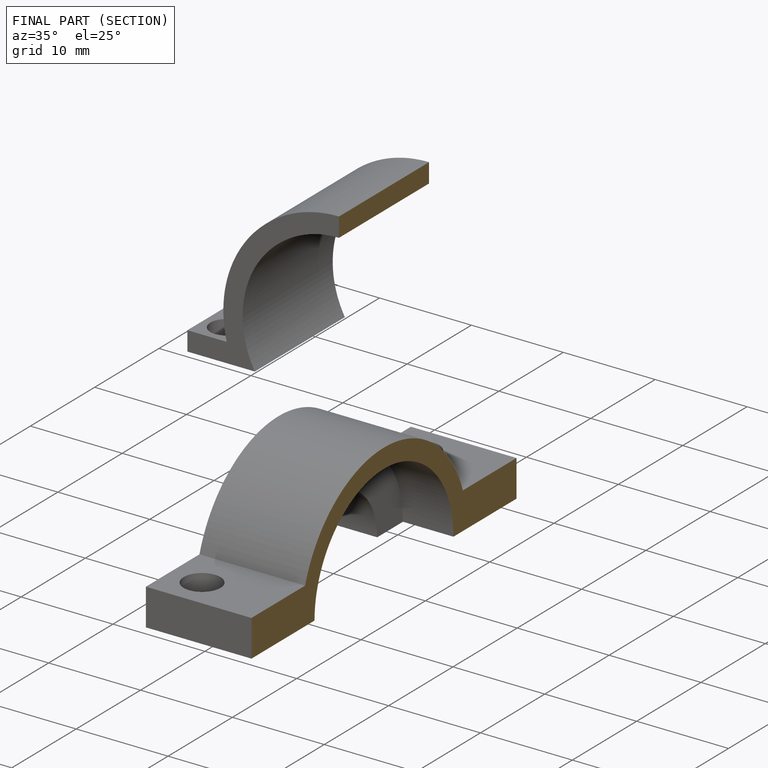
[diagram: finished part — half-section view (interior)]
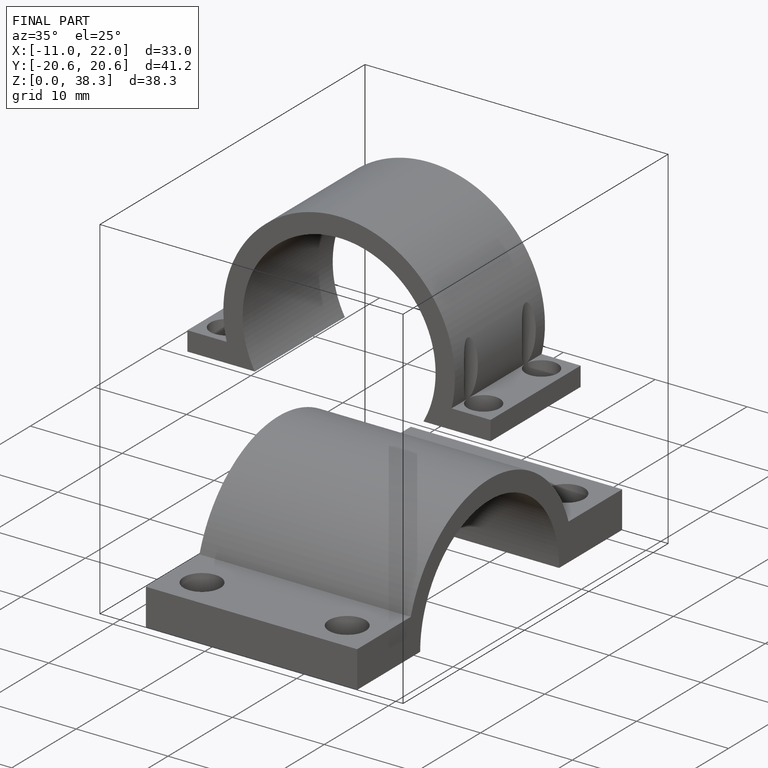
[diagram: finished part — iso view with bounding-box wireframe]
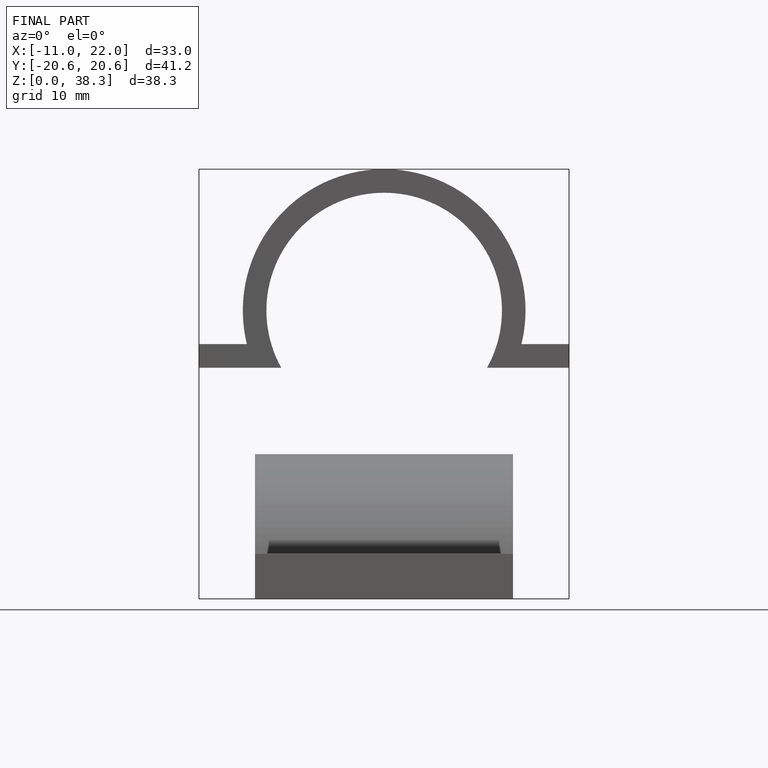
[diagram: finished part — front view with bounding-box wireframe]
